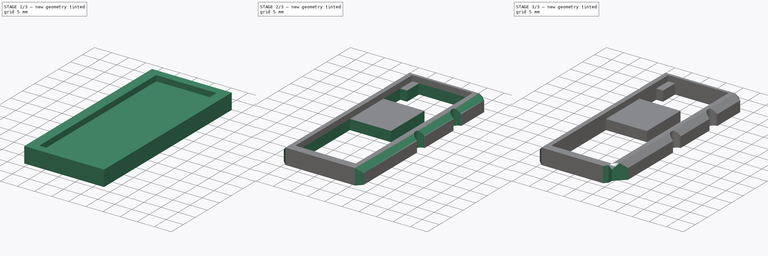
[diagram: build sequence overview — one tinted view per stage of 3, left to right]
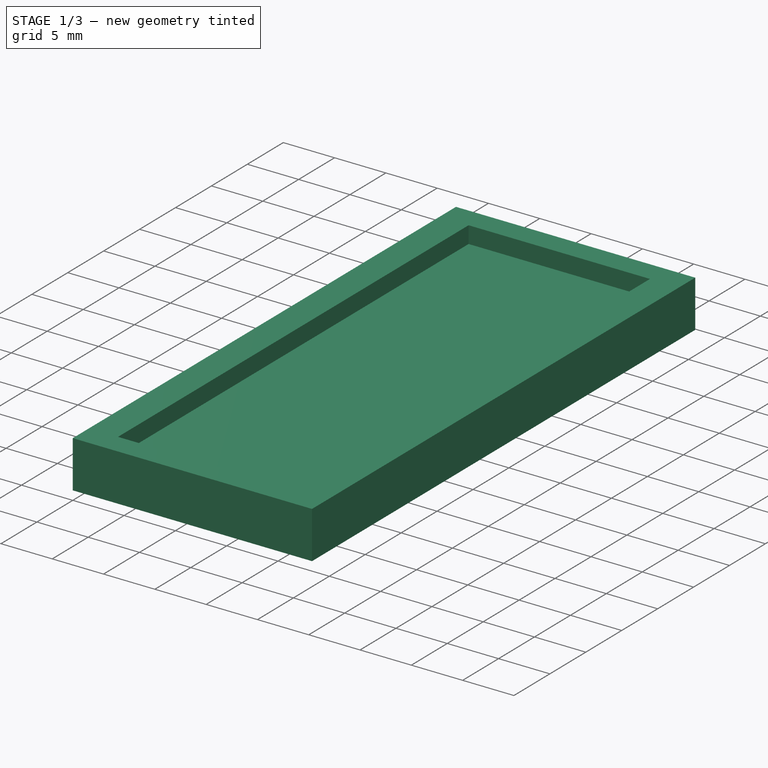
[diagram: stage 1 of 3 — iso view after this stage's code; geometry added in this stage tinted green]
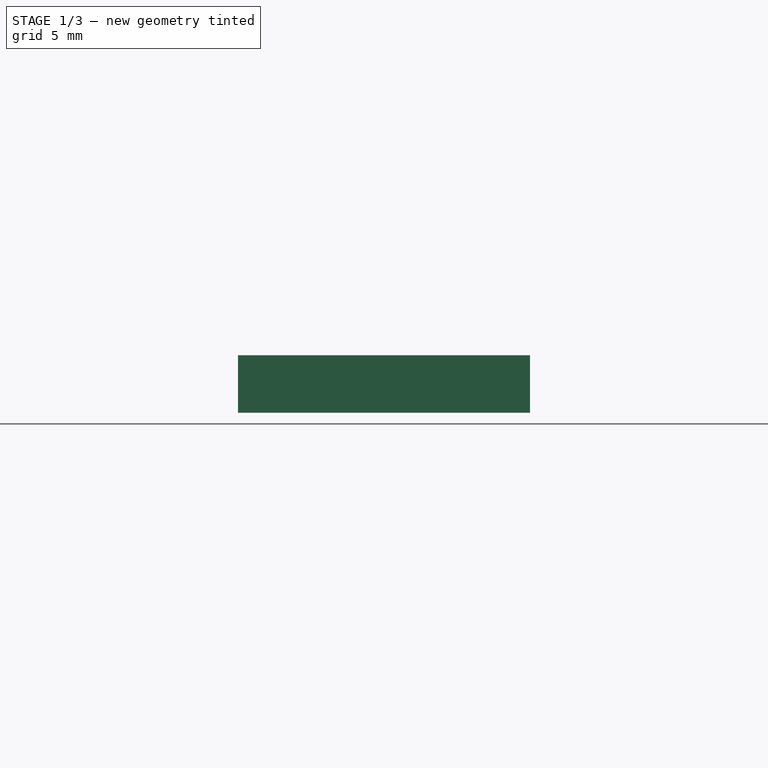
[diagram: stage 1 of 3 — front view after this stage's code; geometry added in this stage tinted green]
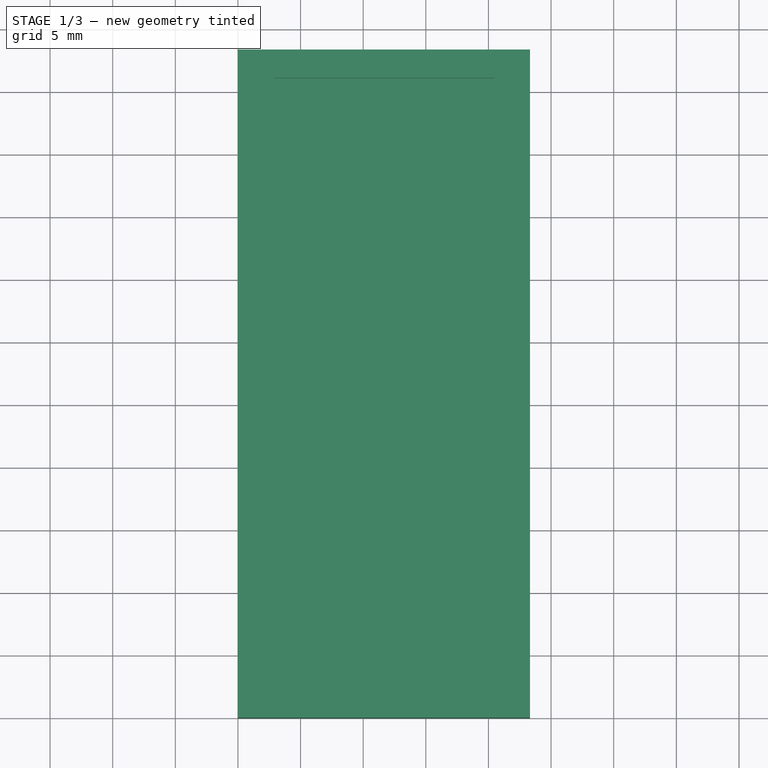
[diagram: stage 1 of 3 — top view after this stage's code; geometry added in this stage tinted green]
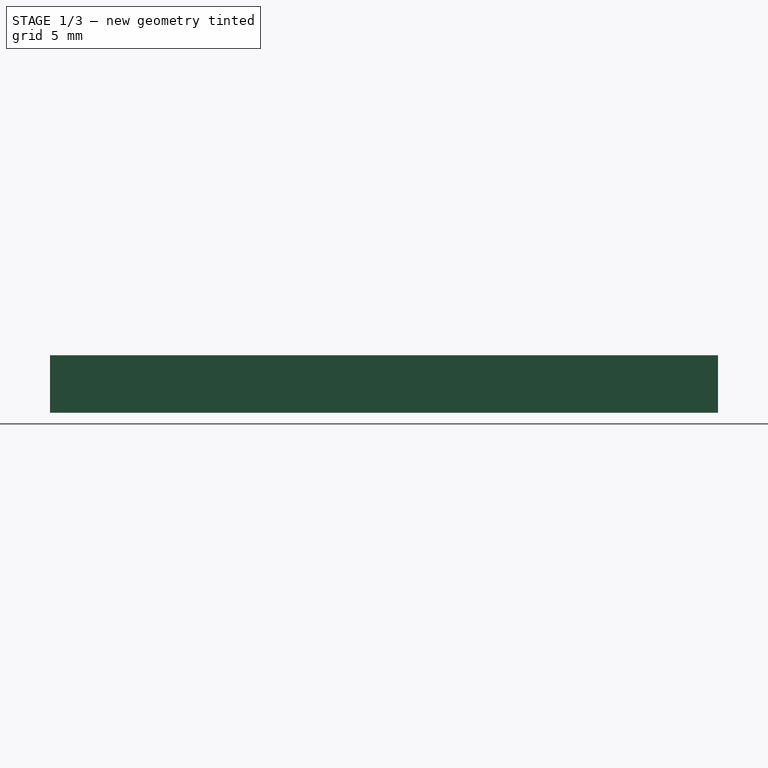
[diagram: stage 1 of 3 — right view after this stage's code; geometry added in this stage tinted green]
FCSTD DOCUMENT  (FreeCAD 0.19R24291 (Git))
Label: enc28j60shim v1
License: All rights reserved
LicenseURL: http://en.wikipedia.org/wiki/All_rights_reserved
objects: Sketcher::SketchObject×5, PartDesign::Pocket×4, PartDesign::Chamfer×2, PartDesign::Pad×1, PartDesign::Body×1
note: 20 computed .brp shape members not serialized (recipe doc carries the construction recipe); baked Part::Feature solids carry a one-line shape summary decoded from their .brp

FEATURE [Sketcher::SketchObject] Sketch
  FullyConstrained = true
  MapMode = 5
  Support = -> [XY_Plane]
  sketch-geometry (4):
    g0: LineSegment StartX=23.32 StartY=53.34 StartZ=0 EndX=0 EndY=53.34 EndZ=0
    g1: LineSegment StartX=0 StartY=53.34 StartZ=0 EndX=0 EndY=0 EndZ=0
    g2: LineSegment StartX=0 StartY=0 StartZ=0 EndX=23.32 EndY=0 EndZ=0
    g3: LineSegment StartX=23.32 StartY=0 StartZ=0 EndX=23.32 EndY=53.34 EndZ=0
  constraints (11):
    c: Coincident(g0,g1)
    c: Coincident(g1,g2)
    c: Coincident(g2,g3)
    c: Coincident(g3,g0)
    c: Horizontal(g0)
    c: Horizontal(g2)
    c: Vertical(g1)
    c: Vertical(g3)
    c: Coincident(g1,g-1)
    c: DistanceY(g3,g3) = 53.34
    c: DistanceX(g0,g0) = 23.32
FEATURE [PartDesign::Pad] Pad
  Direction = (1,1,1)
  Length = 4.6
  Length2 = 100
  Profile = -> Sketch
  Type = 0
FEATURE [Sketcher::SketchObject] Sketch001
  ExternalGeometry = -> [Pad]
  FullyConstrained = true
  MapMode = 5
  Placement = pos=(0,0,4.6) rot=(0,0,1;0rad)
  Support = -> [Pad]
  sketch-geometry (8):
    g0: LineSegment StartX=2.82 StartY=51.07 StartZ=0 EndX=20.5 EndY=51.07 EndZ=0
    g1: LineSegment StartX=20.5 StartY=51.07 StartZ=0 EndX=20.5 EndY=2.27 EndZ=0
    g2: LineSegment StartX=20.5 StartY=2.27 StartZ=0 EndX=2.82 EndY=2.27 EndZ=0
    g3: LineSegment StartX=2.82 StartY=2.27 StartZ=0 EndX=2.82 EndY=51.07 EndZ=0
    g4: LineSegment StartX=20.5 StartY=51.07 StartZ=0 EndX=23.32 EndY=51.07 EndZ=0
    g5: LineSegment StartX=0 StartY=51.07 StartZ=0 EndX=2.82 EndY=51.07 EndZ=0
    g6: LineSegment StartX=2.82 StartY=51.07 StartZ=0 EndX=2.82 EndY=53.34 EndZ=0
    g7: LineSegment StartX=2.82 StartY=2.27 StartZ=0 EndX=2.82 EndY=0 EndZ=0
  constraints (24):
    c: Coincident(g0,g1)
    c: Coincident(g1,g2)
    c: Coincident(g2,g3)
    c: Coincident(g3,g0)
    c: Horizontal(g0)
    c: Horizontal(g2)
    c: Vertical(g1)
    c: Vertical(g3)
    c: DistanceX(g0,g0) = 17.68
    c: DistanceY(g1,g1) = 48.8
    c: PointOnObject(g4,g-4)
    c: Horizontal(g4)
    c: PointOnObject(g5,g-2)
    c: Horizontal(g5)
    c: Coincident(g5,g0)
    c: Coincident(g4,g0)
    c: Equal(g5,g4)
    c: Coincident(g6,g0)
    c: PointOnObject(g6,g-3)
    c: Vertical(g6)
    c: Coincident(g7,g2)
    c: PointOnObject(g7,g-1)
    c: Vertical(g7)
    c: Equal(g6,g7)
FEATURE [PartDesign::Pocket] Pocket
  BaseFeature = -> Pad
  Length = 1.65
  Length2 = 100
  Profile = -> Sketch001
  Type = 0
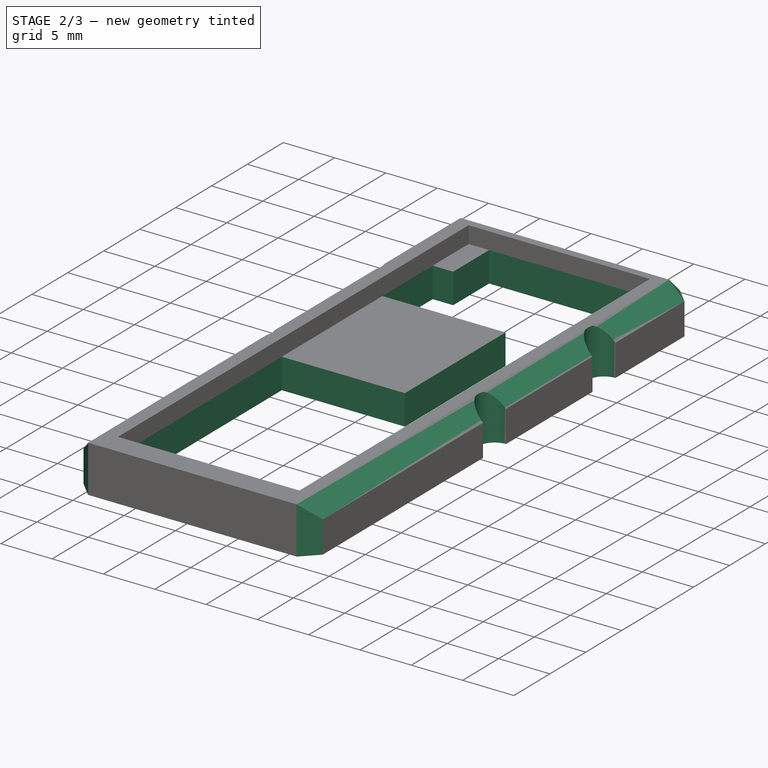
[diagram: stage 2 of 3 — iso view after this stage's code; geometry added in this stage tinted green]
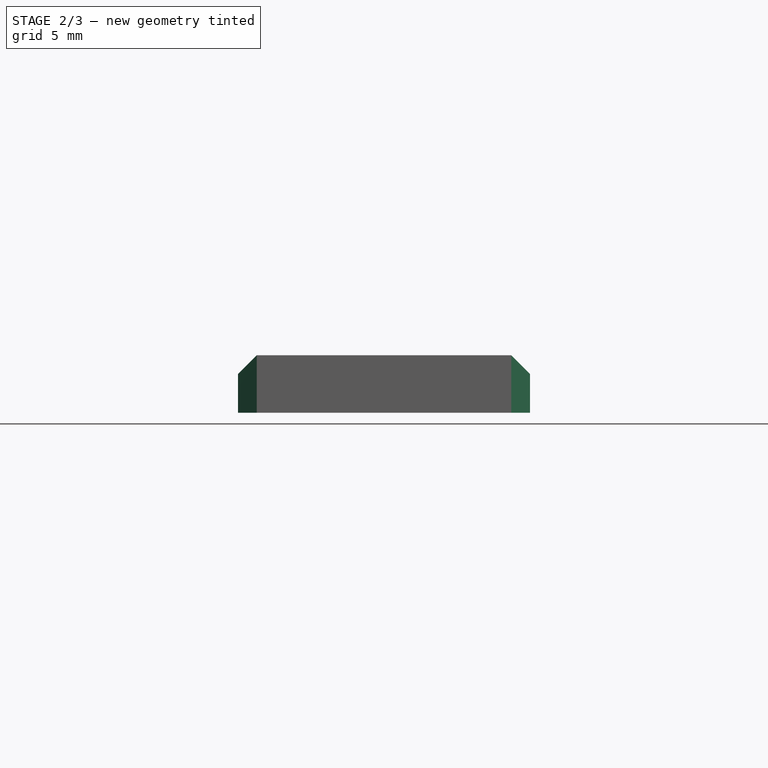
[diagram: stage 2 of 3 — front view after this stage's code; geometry added in this stage tinted green]
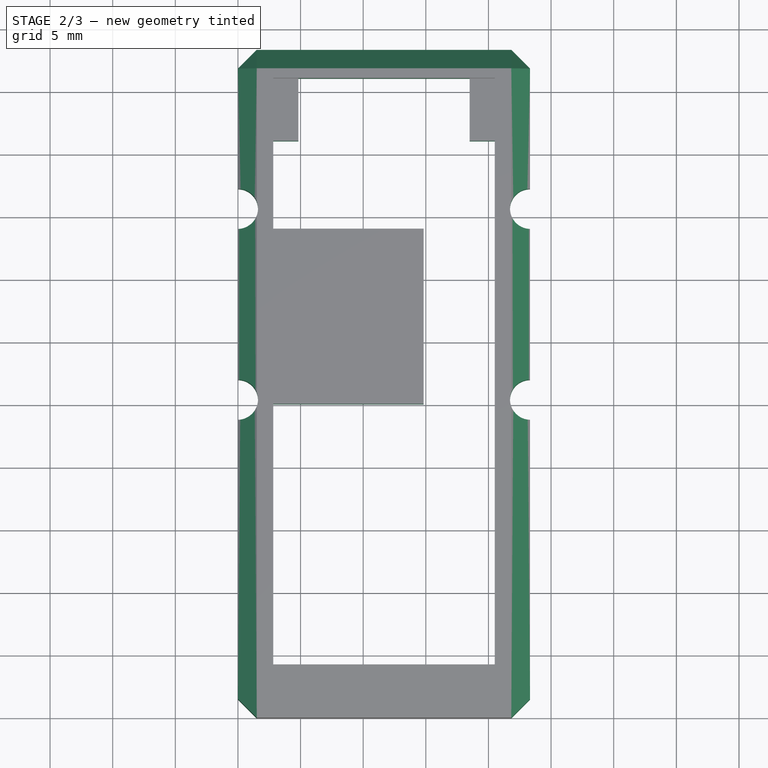
[diagram: stage 2 of 3 — top view after this stage's code; geometry added in this stage tinted green]
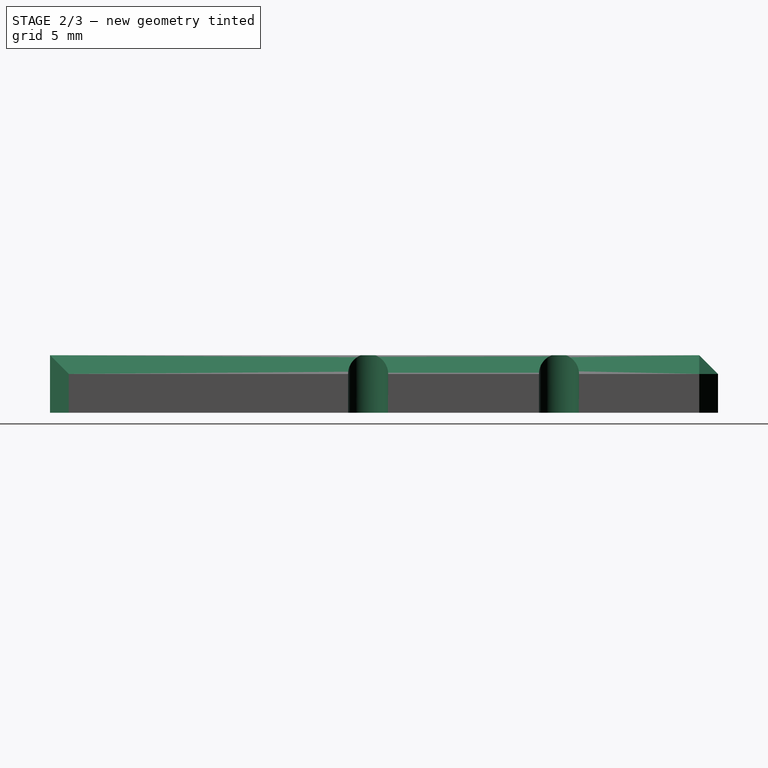
[diagram: stage 2 of 3 — right view after this stage's code; geometry added in this stage tinted green]
FEATURE [Sketcher::SketchObject] Sketch002
  ExternalGeometry = -> [Pocket]
  FullyConstrained = true
  MapMode = 5
  Placement = pos=(0,0,2.95) rot=(0,0,1;0rad)
  Support = -> [Pocket]
  sketch-geometry (12):
    g0: LineSegment StartX=2.82 StartY=4.27 StartZ=0 EndX=20.5 EndY=4.27 EndZ=0
    g1: LineSegment StartX=2.82 StartY=46.07 StartZ=0 EndX=4.82 EndY=46.07 EndZ=0
    g2: LineSegment StartX=4.82 StartY=46.07 StartZ=0 EndX=4.82 EndY=51.07 EndZ=0
    g3: LineSegment StartX=4.82 StartY=51.07 StartZ=0 EndX=18.5 EndY=51.07 EndZ=0
    g4: LineSegment StartX=18.5 StartY=51.07 StartZ=0 EndX=18.5 EndY=46.07 EndZ=0
    g5: LineSegment StartX=18.5 StartY=46.07 StartZ=0 EndX=20.5 EndY=46.07 EndZ=0
    g6: LineSegment StartX=20.5 StartY=46.07 StartZ=0 EndX=20.5 EndY=4.27 EndZ=0
    g7: LineSegment StartX=2.82 StartY=46.07 StartZ=0 EndX=2.82 EndY=39.07 EndZ=0
    g8: LineSegment StartX=2.82 StartY=39.07 StartZ=0 EndX=14.82 EndY=39.07 EndZ=0
    g9: LineSegment StartX=14.82 StartY=39.07 StartZ=0 EndX=14.82 EndY=25.07 EndZ=0
    g10: LineSegment StartX=2.82 StartY=25.07 StartZ=0 EndX=14.82 EndY=25.07 EndZ=0
    g11: LineSegment StartX=2.82 StartY=4.27 StartZ=0 EndX=2.82 EndY=25.07 EndZ=0
  constraints (36):
    c: PointOnObject(g0,g-5)
    c: PointOnObject(g0,g-4)
    c: Horizontal(g0)
    c: PointOnObject(g1,g-5)
    c: Horizontal(g1)
    c: Coincident(g1,g2)
    c: PointOnObject(g2,g-3)
    c: Vertical(g2)
    c: Coincident(g2,g3)
    c: PointOnObject(g3,g-3)
    c: Coincident(g3,g4)
    c: Vertical(g4)
    c: Coincident(g4,g5)
    c: PointOnObject(g5,g-4)
    c: Horizontal(g5)
    c: Coincident(g5,g6)
    c: Coincident(g6,g0)
    c: Distance(g0,g-6) = 2
    c: Equal(g4,g2)
    c: DistanceY(g2,g2) = 5
    c: Equal(g1,g5)
    c: DistanceX(g1,g1) = 2
    c: Coincident(g7,g1)
    c: PointOnObject(g7,g-5)
    c: Coincident(g8,g7)
    c: Horizontal(g8)
    c: Coincident(g9,g8)
    c: Vertical(g9)
    c: PointOnObject(g10,g-5)
    c: Coincident(g10,g9)
    c: Horizontal(g10)
    c: Coincident(g11,g0)
    c: Coincident(g11,g10)
    c: Distance(g8,g3) = 12
    c: DistanceX(g8,g8) = 12
    c: DistanceY(g9,g9) = 14
FEATURE [PartDesign::Pocket] Pocket001
  BaseFeature = -> Pocket
  Length = 3
  Length2 = 100
  Profile = -> Sketch002
  Type = 0
FEATURE [Sketcher::SketchObject] Sketch003
  ExternalGeometry = -> [Pocket001]
  FullyConstrained = true
  MapMode = 5
  Placement = pos=(0,0,4.6) rot=(0,0,1;0rad)
  Support = -> [Pocket001]
  sketch-geometry (4):
    g0: Circle CenterX=23.32 CenterY=40.64 CenterZ=0 NormalX=0 NormalY=0 NormalZ=1 AngleXU=0 Radius=1.6
    g1: Circle CenterX=23.32 CenterY=25.4 CenterZ=0 NormalX=0 NormalY=0 NormalZ=1 AngleXU=0 Radius=1.6
    g2: Circle CenterX=0 CenterY=40.64 CenterZ=0 NormalX=0 NormalY=0 NormalZ=1 AngleXU=0 Radius=1.6
    g3: Circle CenterX=0 CenterY=25.4 CenterZ=0 NormalX=0 NormalY=0 NormalZ=1 AngleXU=0 Radius=1.6
  constraints (12):
    c: PointOnObject(g0,g-3)
    c: PointOnObject(g1,g-3)
    c: PointOnObject(g2,g-2)
    c: PointOnObject(g3,g-2)
    c: Radius(g0) = 1.6
    c: Equal(g0,g1)
    c: Equal(g0,g2)
    c: Equal(g0,g3)
    c: Horizontal(g2,g0)
    c: Horizontal(g3,g1)
    c: DistanceY(g-1,g0) = 40.64
    c: DistanceY(g-1,g1) = 25.4
FEATURE [PartDesign::Pocket] Pocket002
  BaseFeature = -> Pocket001
  Length = 5
  Length2 = 100
  Profile = -> Sketch003
  Type = 0
FEATURE [PartDesign::Chamfer] Chamfer
  Angle = 45
  Base = -> Pocket002 [Edge6,Edge4,Edge10,Edge42,Edge35,Edge37,Edge39,Edge53,Edge54,Edge1,Edge2]
  BaseFeature = -> Pocket002
  ChamferType = 0
  FlipDirection = false
  Size = 1.5
  Size2 = 1
  SupportTransform = false
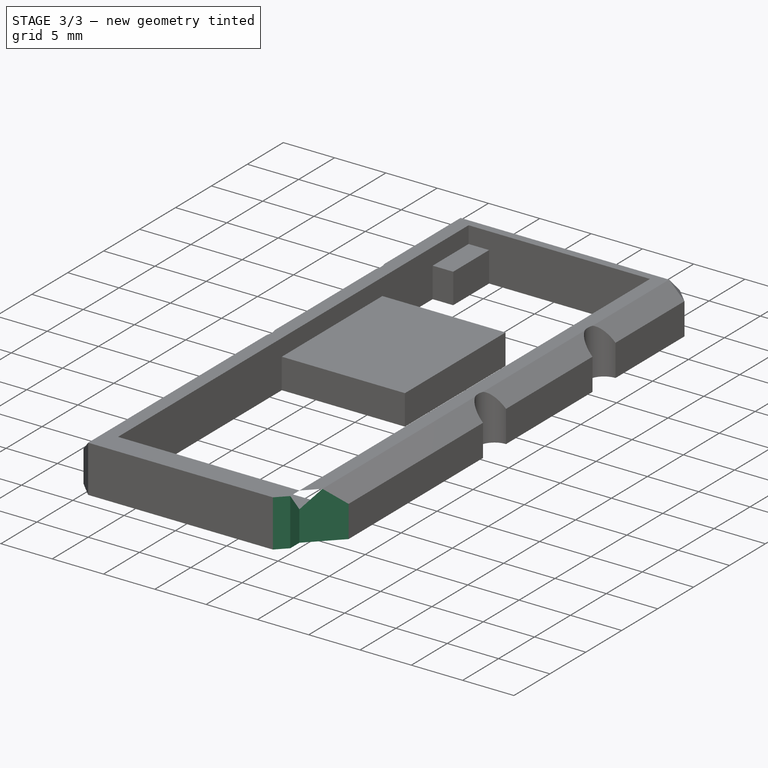
[diagram: stage 3 of 3 — iso view after this stage's code; geometry added in this stage tinted green]
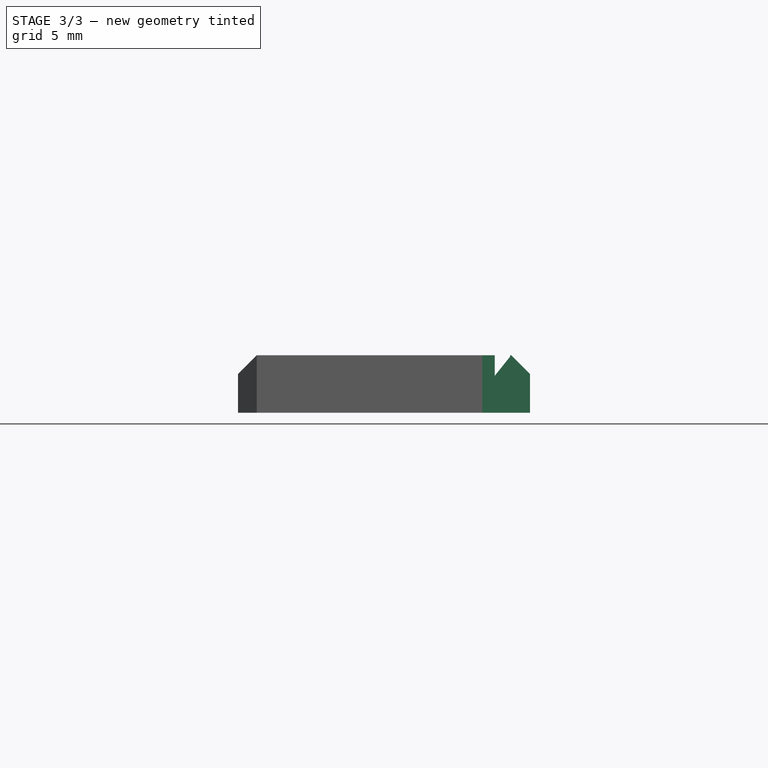
[diagram: stage 3 of 3 — front view after this stage's code; geometry added in this stage tinted green]
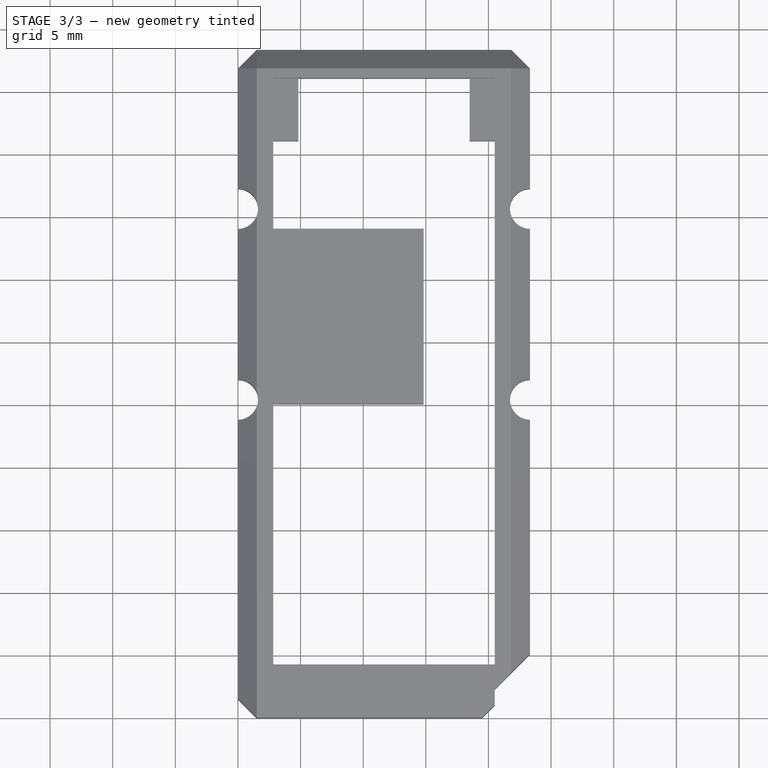
[diagram: stage 3 of 3 — top view after this stage's code; geometry added in this stage tinted green]
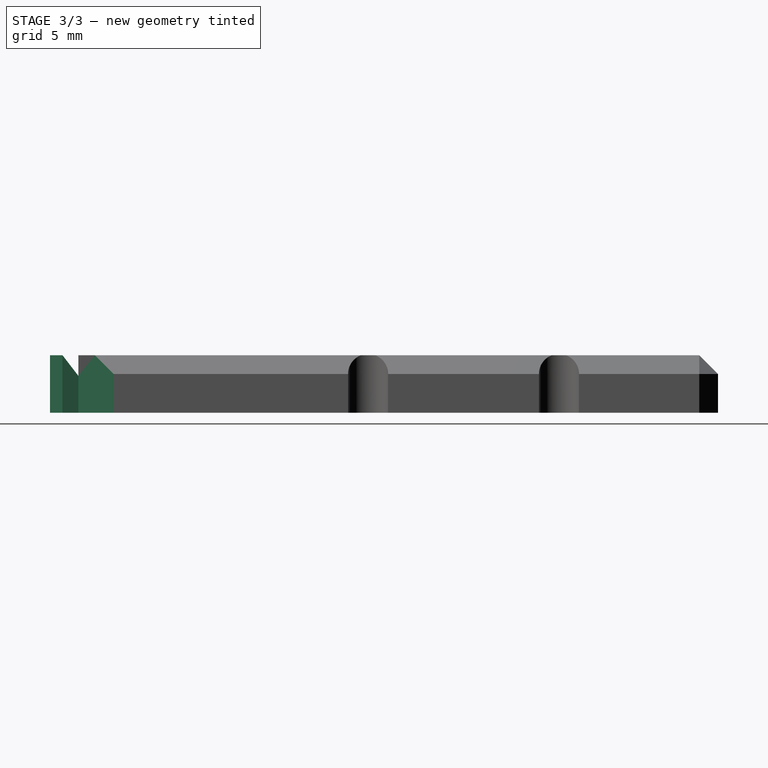
[diagram: stage 3 of 3 — right view after this stage's code; geometry added in this stage tinted green]
FEATURE [Sketcher::SketchObject] Sketch004
  ExternalGeometry = -> [Chamfer]
  FullyConstrained = true
  MapMode = 5
  Placement = pos=(0,0,4.6) rot=(0,0,1;0rad)
  Support = -> [Chamfer]
  sketch-geometry (4):
    g0: LineSegment StartX=24.23 StartY=6 StartZ=0 EndX=24.23 EndY=0 EndZ=0
    g1: LineSegment StartX=20.5 StartY=2.27 StartZ=0 EndX=24.23 EndY=6 EndZ=0
    g2: LineSegment StartX=20.5 StartY=2.27 StartZ=0 EndX=20.5 EndY=0 EndZ=0
    g3: LineSegment StartX=20.5 StartY=0 StartZ=0 EndX=24.23 EndY=0 EndZ=0
  constraints (11):
    c: PointOnObject(g0,g-1)
    c: Vertical(g0)
    c: Coincident(g1,g0)
    c: DistanceY(g0,g0) = 6
    c: PointOnObject(g2,g-1)
    c: Coincident(g3,g2)
    c: Coincident(g3,g0)
    c: Angle(g1,g0) = 0.785398
    c: Coincident(g2,g-3)
    c: Coincident(g1,g2)
    c: Vertical(g2)
FEATURE [PartDesign::Pocket] Pocket003
  BaseFeature = -> Chamfer
  Length = 5
  Length2 = 100
  Profile = -> Sketch004
  Type = 0
FEATURE [PartDesign::Chamfer] Chamfer001
  Angle = 45
  Base = -> Pocket003 [Edge61]
  BaseFeature = -> Pocket003
  ChamferType = 0
  FlipDirection = false
  Size = 1
  Size2 = 1
  SupportTransform = false
FEATURE [PartDesign::Body] Body
  Group = -> [Sketch,Pad,Sketch001,Pocket,Sketch002,Pocket001,Sketch003,Pocket002,Chamfer,Sketch004,Pocket003,Chamfer001]
  Origin = -> Origin
  Tip = -> Chamfer001
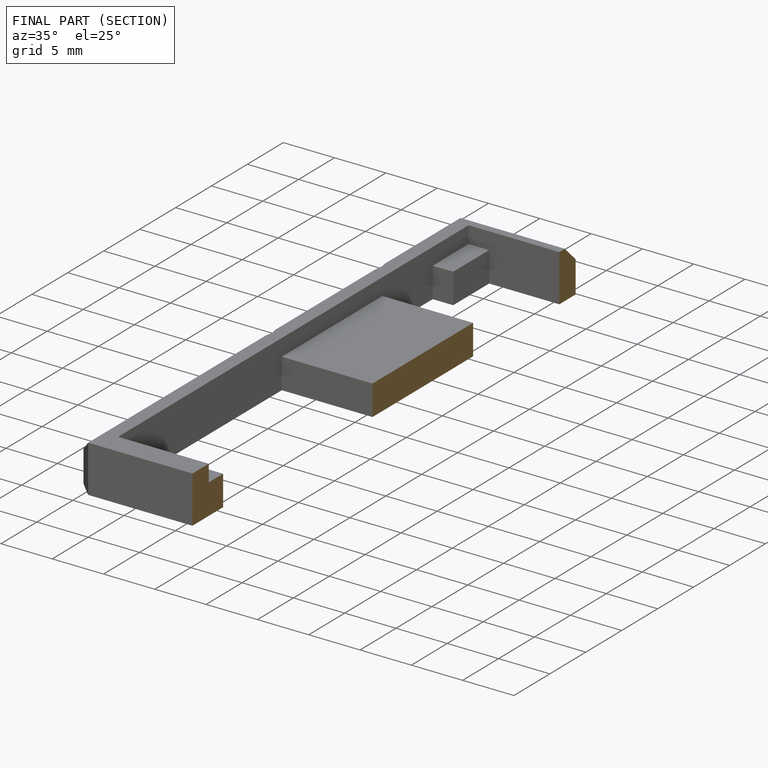
[diagram: finished part — half-section view (interior)]
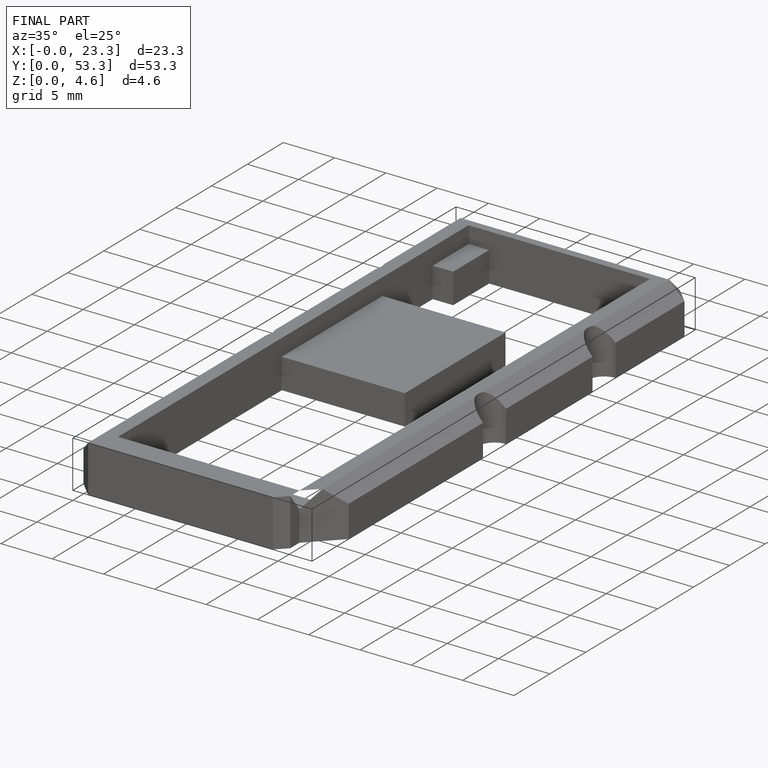
[diagram: finished part — iso view with bounding-box wireframe]
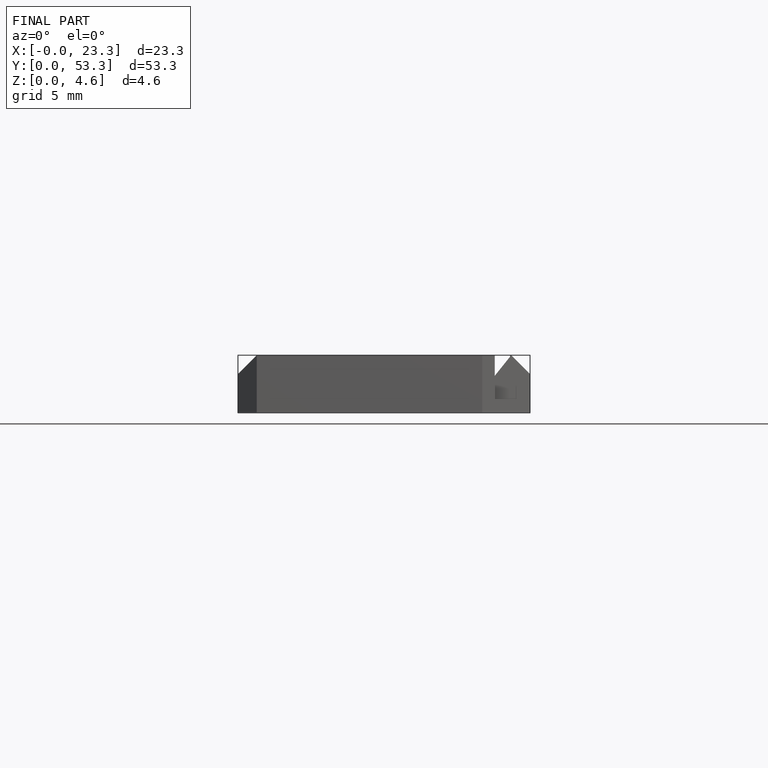
[diagram: finished part — front view with bounding-box wireframe]
